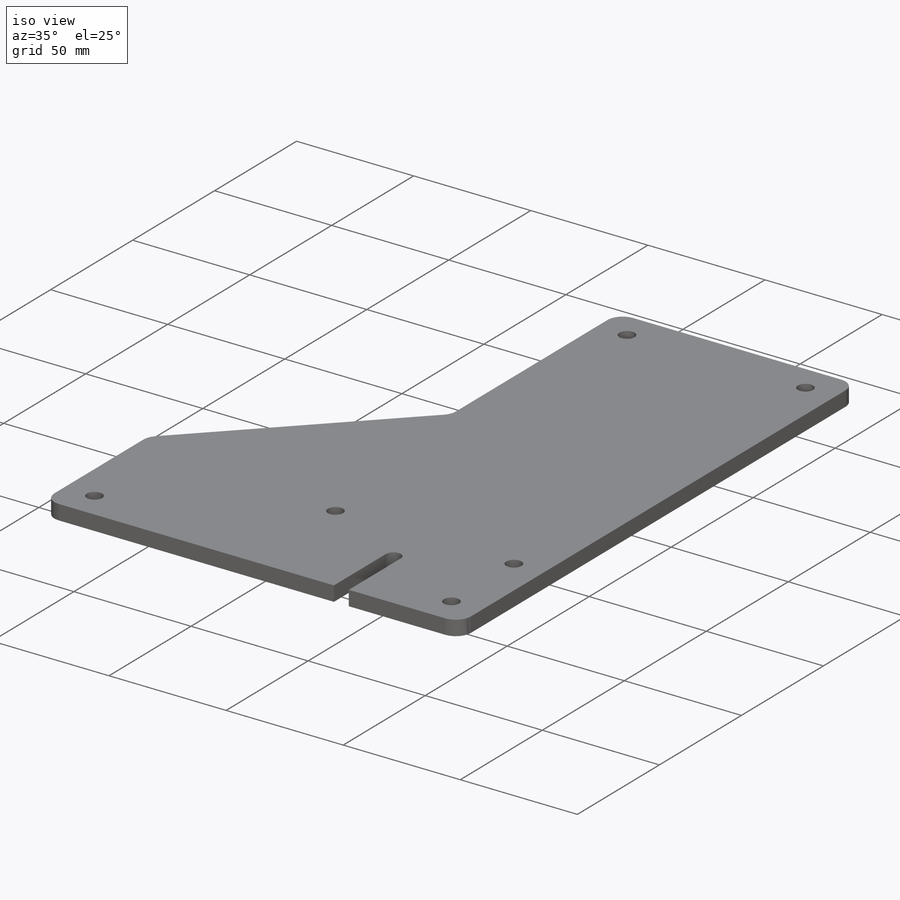
[diagram: iso view]
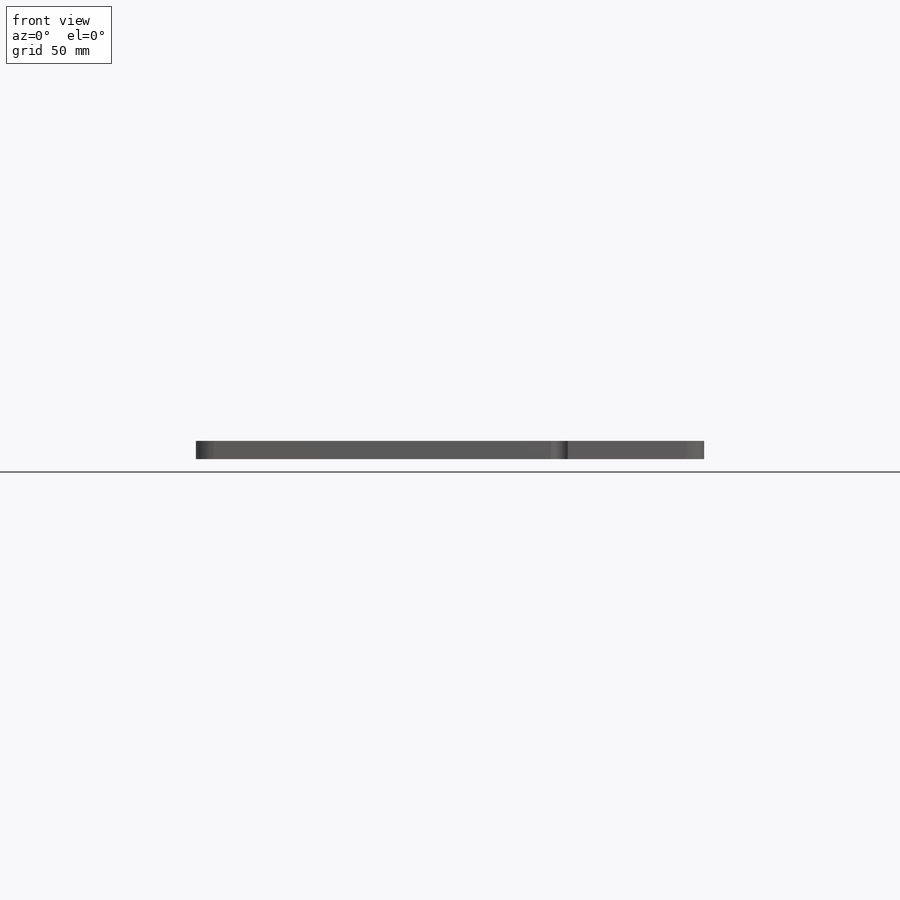
[diagram: front view]
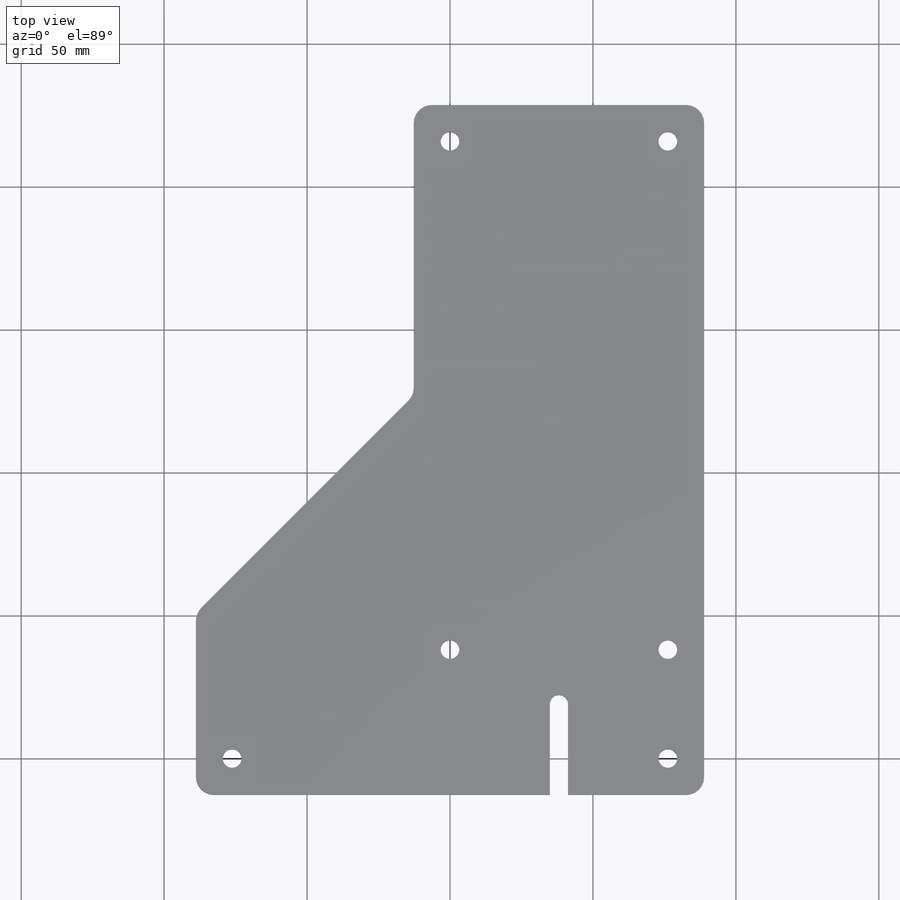
[diagram: top view]
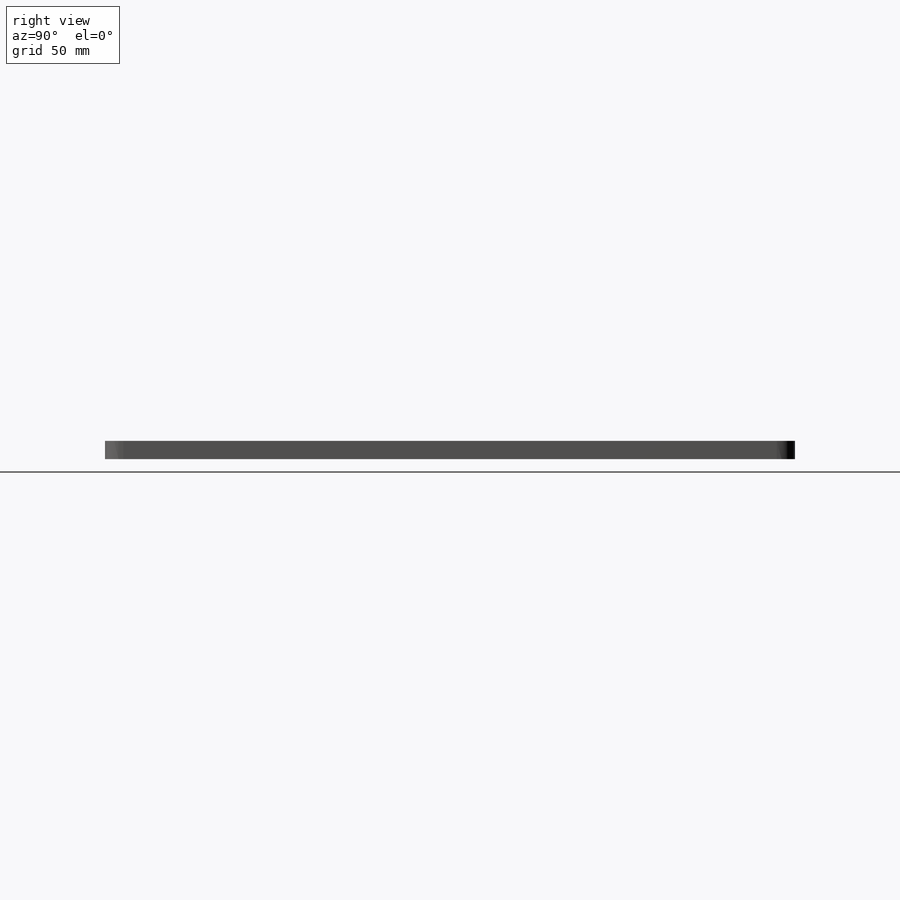
[diagram: right view]
SOLIDWORKS PART (.sldprt)
format: sldprt  version: not decoded by parser v0  size: 196,608 bytes
history: native  units: mm
features: sketch x4, material x1, extrude x1, hole x1, fillet x1, cut_extrude x1 (+12 scaffold rows collapsed)
feature tree (21):
  scaffold x12  (default folders/planes/origin — collapsed)
  material  "Material <not specified>"
  sketch  "Sketch1"  dims[c1.D1=152.4mm c1.D2=76.2mm c1.D3=38.1mm c1.D4=177.8mm c1.D5=12.7mm c1.D6=101.6mm c1.D7=12.7mm c1.D8=177.8mm c1.D9=12.7mm c1.D10=~111.561801mm c2.D10=45.0deg c2.D11=12.7mm]
  extrude  "Boss-Extrude1"  Depth=6.35mm
  hole  "1/4 Clearance Hole1"  Diameter=6.5278mm Depth=6.35mm
  sketch  "Sketch3"
  sketch  "Sketch2"  dims[hole-wizard template sketch: 47 standard entries collapsed; hole parameters kept: c15.Hole Depth=6.35mm c15.D3=~14.816244mm c15.Drill Angle=118.0deg]
  fillet  "Fillet1"  Radius=6.35mm
  sketch  "Sketch4"  dims[D1=6.35mm D2=31.75mm]
  cut_extrude  "Cut-Extrude1"  [1 undecoded]
decode coverage: 6 of 8 modeling features carry decoded parameters
note: ~ marks probable driven/reference dimensions
note: 1 parameter value undecoded
note: suppression state not decoded; provenance and decode notes live in map.json
